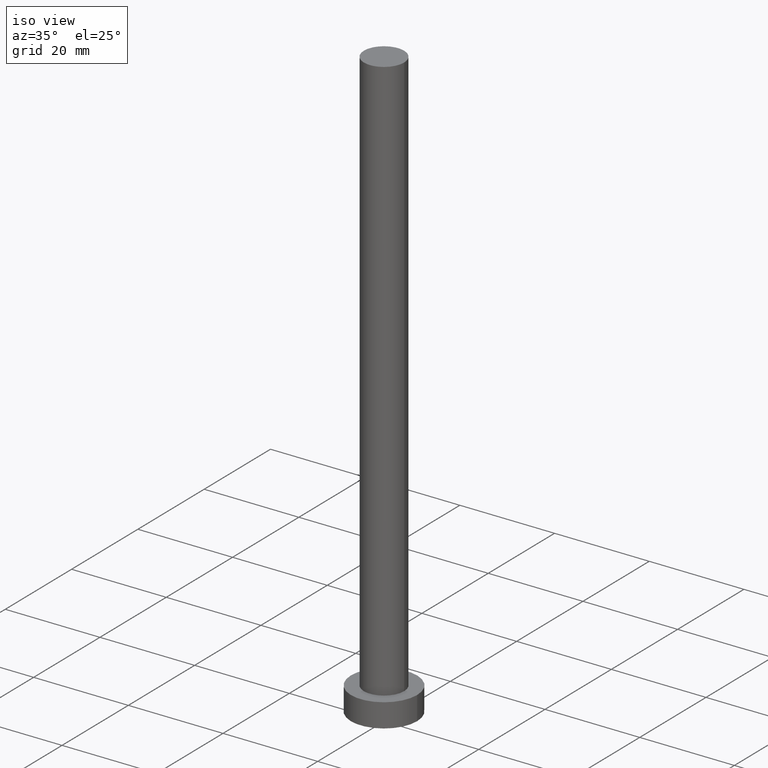
[diagram: clean part render]
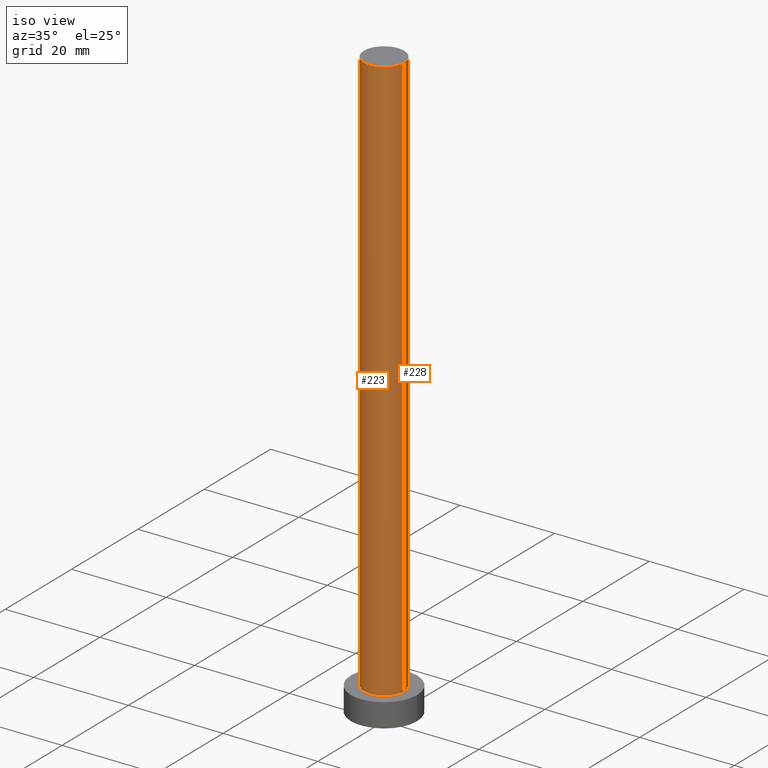
[diagram: same view with one multi-face feature highlighted, each face labeled with its STEP entity id]
A machine part, iso view. The highlighted faces form ONE feature: a constant-radius fillet chain: 2 tangent blend faces with common blend radius 4.25 mm. The faces share edges in the B-rep.
Their STEP definitions:
[1] entity #228 (Cylinder):
#28 = DIRECTION ( 'NONE',  ( 1.000000000000000000, 0.000000000000000000, 0.000000000000000000 ) ) ;
#33 = VERTEX_POINT ( 'NONE', #172 ) ;
#37 = VERTEX_POINT ( 'NONE', #186 ) ;
#42 = AXIS2_PLACEMENT_3D ( 'NONE', #227, #208, #143 ) ;
#47 = DIRECTION ( 'NONE',  ( 0.000000000000000000, 0.000000000000000000, 1.000000000000000000 ) ) ;
#49 = CARTESIAN_POINT ( 'NONE',  ( -4.250000000000000000, 0.000000000000000000, 125.0000000000000000 ) ) ;
#56 = EDGE_CURVE ( 'NONE', #37, #67, #148, .T. ) ;
#57 = ORIENTED_EDGE ( 'NONE', *, *, #56, .F. ) ;
#58 = CARTESIAN_POINT ( 'NONE',  ( 0.000000000000000000, 0.000000000000000000, 125.0000000000000000 ) ) ;
#63 = ORIENTED_EDGE ( 'NONE', *, *, #212, .T. ) ;
#67 = VERTEX_POINT ( 'NONE', #49 ) ;
#78 = CIRCLE ( 'NONE', #133, 4.250000000000000000 ) ;
#88 = EDGE_CURVE ( 'NONE', #67, #110, #248, .T. ) ;
#95 = ORIENTED_EDGE ( 'NONE', *, *, #247, .T. ) ;
#98 = FACE_OUTER_BOUND ( 'NONE', #138, .T. ) ;
#100 = DIRECTION ( 'NONE',  ( -0.000000000000000000, -0.000000000000000000, -1.000000000000000000 ) ) ;
#102 = DIRECTION ( 'NONE',  ( -0.000000000000000000, -0.000000000000000000, -1.000000000000000000 ) ) ;
#110 = VERTEX_POINT ( 'NONE', #136 ) ;
#112 = VECTOR ( 'NONE', #242, 1000.000000000000000 ) ;
#115 = CARTESIAN_POINT ( 'NONE',  ( -4.250000000000000000, 0.000000000000000000, 125.0000000000000000 ) ) ;
#133 = AXIS2_PLACEMENT_3D ( 'NONE', #240, #47, #28 ) ;
#136 = CARTESIAN_POINT ( 'NONE',  ( -4.250000000000000000, 0.000000000000000000, 5.000000000000000000 ) ) ;
#138 = EDGE_LOOP ( 'NONE', ( #57, #63, #95, #218 ) ) ;
#143 = DIRECTION ( 'NONE',  ( 1.000000000000000000, 0.000000000000000000, 0.000000000000000000 ) ) ;
#148 = CIRCLE ( 'NONE', #42, 4.250000000000000000 ) ;
#172 = CARTESIAN_POINT ( 'NONE',  ( 4.250000000000000000, 5.204748896376250699E-16, 5.000000000000000000 ) ) ;
#176 = CYLINDRICAL_SURFACE ( 'NONE', #183, 4.250000000000000000 ) ;
#177 = DIRECTION ( 'NONE',  ( -1.000000000000000000, 0.000000000000000000, 0.000000000000000000 ) ) ;
#183 = AXIS2_PLACEMENT_3D ( 'NONE', #58, #102, #177 ) ;
#186 = CARTESIAN_POINT ( 'NONE',  ( 4.250000000000000000, 5.204748896376250699E-16, 125.0000000000000000 ) ) ;
#208 = DIRECTION ( 'NONE',  ( 0.000000000000000000, 0.000000000000000000, 1.000000000000000000 ) ) ;
#212 = EDGE_CURVE ( 'NONE', #37, #33, #216, .T. ) ;
#216 = LINE ( 'NONE', #234, #243 ) ;
#218 = ORIENTED_EDGE ( 'NONE', *, *, #88, .F. ) ;
#227 = CARTESIAN_POINT ( 'NONE',  ( 0.000000000000000000, 0.000000000000000000, 125.0000000000000000 ) ) ;
#228 = ADVANCED_FACE ( 'NONE', ( #98 ), #176, .T. ) ;
#234 = CARTESIAN_POINT ( 'NONE',  ( 4.250000000000000000, 5.204748896376250699E-16, 125.0000000000000000 ) ) ;
#240 = CARTESIAN_POINT ( 'NONE',  ( 0.000000000000000000, 0.000000000000000000, 5.000000000000000000 ) ) ;
#242 = DIRECTION ( 'NONE',  ( -0.000000000000000000, -0.000000000000000000, -1.000000000000000000 ) ) ;
#243 = VECTOR ( 'NONE', #100, 1000.000000000000000 ) ;
#247 = EDGE_CURVE ( 'NONE', #33, #110, #78, .T. ) ;
#248 = LINE ( 'NONE', #115, #112 ) ;
[2] entity #223 (Cylinder):
#3 = DIRECTION ( 'NONE',  ( 0.000000000000000000, 0.000000000000000000, 1.000000000000000000 ) ) ;
#14 = EDGE_CURVE ( 'NONE', #110, #33, #54, .T. ) ;
#22 = EDGE_CURVE ( 'NONE', #67, #37, #70, .T. ) ;
#33 = VERTEX_POINT ( 'NONE', #172 ) ;
#37 = VERTEX_POINT ( 'NONE', #186 ) ;
#41 = CARTESIAN_POINT ( 'NONE',  ( 0.000000000000000000, 0.000000000000000000, 125.0000000000000000 ) ) ;
#49 = CARTESIAN_POINT ( 'NONE',  ( -4.250000000000000000, 0.000000000000000000, 125.0000000000000000 ) ) ;
#54 = CIRCLE ( 'NONE', #99, 4.250000000000000000 ) ;
#67 = VERTEX_POINT ( 'NONE', #49 ) ;
#70 = CIRCLE ( 'NONE', #226, 4.250000000000000000 ) ;
#82 = CARTESIAN_POINT ( 'NONE',  ( 0.000000000000000000, 0.000000000000000000, 5.000000000000000000 ) ) ;
#85 = CARTESIAN_POINT ( 'NONE',  ( 0.000000000000000000, 0.000000000000000000, 125.0000000000000000 ) ) ;
#88 = EDGE_CURVE ( 'NONE', #67, #110, #248, .T. ) ;
#99 = AXIS2_PLACEMENT_3D ( 'NONE', #82, #214, #106 ) ;
#100 = DIRECTION ( 'NONE',  ( -0.000000000000000000, -0.000000000000000000, -1.000000000000000000 ) ) ;
#101 = ORIENTED_EDGE ( 'NONE', *, *, #14, .T. ) ;
#106 = DIRECTION ( 'NONE',  ( 1.000000000000000000, 0.000000000000000000, 0.000000000000000000 ) ) ;
#110 = VERTEX_POINT ( 'NONE', #136 ) ;
#112 = VECTOR ( 'NONE', #242, 1000.000000000000000 ) ;
#115 = CARTESIAN_POINT ( 'NONE',  ( -4.250000000000000000, 0.000000000000000000, 125.0000000000000000 ) ) ;
#122 = DIRECTION ( 'NONE',  ( -0.000000000000000000, -0.000000000000000000, -1.000000000000000000 ) ) ;
#131 = EDGE_LOOP ( 'NONE', ( #255, #140, #190, #101 ) ) ;
#136 = CARTESIAN_POINT ( 'NONE',  ( -4.250000000000000000, 0.000000000000000000, 5.000000000000000000 ) ) ;
#140 = ORIENTED_EDGE ( 'NONE', *, *, #22, .F. ) ;
#149 = AXIS2_PLACEMENT_3D ( 'NONE', #41, #122, #197 ) ;
#156 = FACE_OUTER_BOUND ( 'NONE', #131, .T. ) ;
#172 = CARTESIAN_POINT ( 'NONE',  ( 4.250000000000000000, 5.204748896376250699E-16, 5.000000000000000000 ) ) ;
#174 = DIRECTION ( 'NONE',  ( 1.000000000000000000, 0.000000000000000000, 0.000000000000000000 ) ) ;
#186 = CARTESIAN_POINT ( 'NONE',  ( 4.250000000000000000, 5.204748896376250699E-16, 125.0000000000000000 ) ) ;
#190 = ORIENTED_EDGE ( 'NONE', *, *, #88, .T. ) ;
#197 = DIRECTION ( 'NONE',  ( -1.000000000000000000, 0.000000000000000000, 0.000000000000000000 ) ) ;
#212 = EDGE_CURVE ( 'NONE', #37, #33, #216, .T. ) ;
#214 = DIRECTION ( 'NONE',  ( 0.000000000000000000, 0.000000000000000000, 1.000000000000000000 ) ) ;
#216 = LINE ( 'NONE', #234, #243 ) ;
#223 = ADVANCED_FACE ( 'NONE', ( #156 ), #231, .T. ) ;
#226 = AXIS2_PLACEMENT_3D ( 'NONE', #85, #3, #174 ) ;
#231 = CYLINDRICAL_SURFACE ( 'NONE', #149, 4.250000000000000000 ) ;
#234 = CARTESIAN_POINT ( 'NONE',  ( 4.250000000000000000, 5.204748896376250699E-16, 125.0000000000000000 ) ) ;
#242 = DIRECTION ( 'NONE',  ( -0.000000000000000000, -0.000000000000000000, -1.000000000000000000 ) ) ;
#243 = VECTOR ( 'NONE', #100, 1000.000000000000000 ) ;
#248 = LINE ( 'NONE', #115, #112 ) ;
#255 = ORIENTED_EDGE ( 'NONE', *, *, #212, .F. ) ;